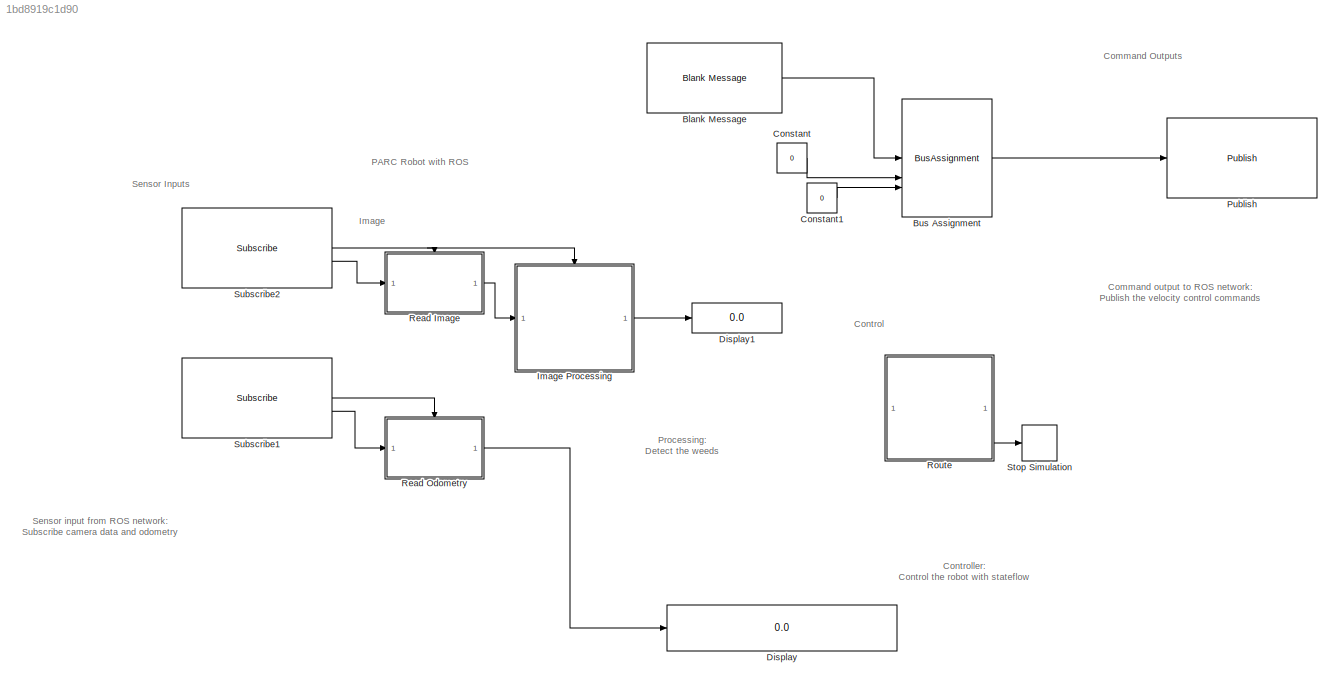
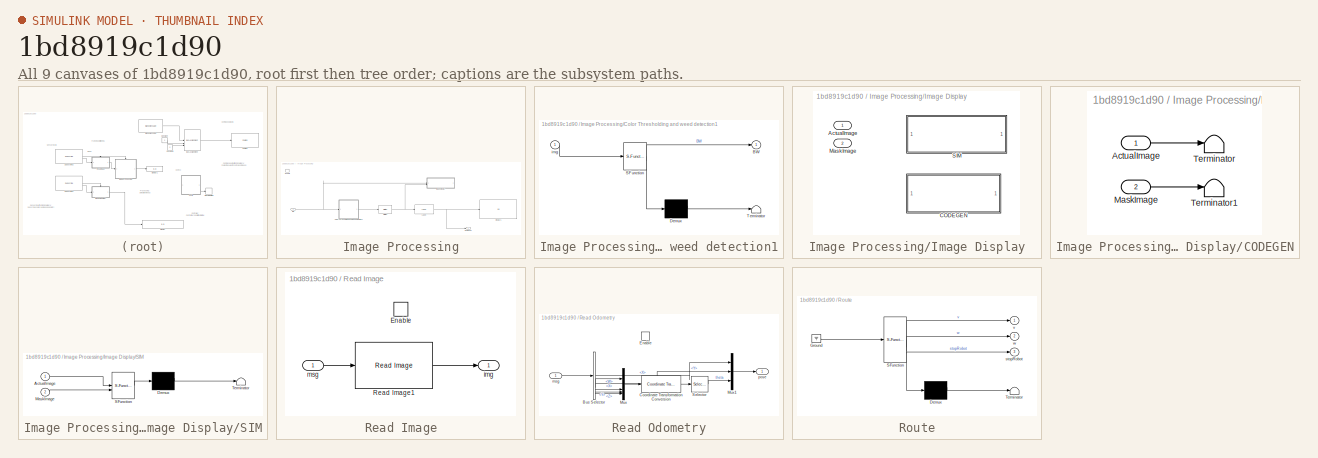
[diagram: thumbnail index - all 9 canvases of the model, root first then tree order]
MODEL slx_1bd8919c1d90
KIND model
CONFIG AbsTol = auto
CONFIG EnableMultiTasking = off
CONFIG FixedStep = auto
CONFIG MaxStep = auto
CONFIG MinStep = auto
CONFIG RelTol = 1e-3
CONFIG SampleTimeConstraint = Unconstrained
CONFIG SolverName = FixedStepAuto
CONFIG StartTime = 0.0
CONFIG StopFcn = figHandles = findobj('Type', 'figure');\nfor i = 1: length(figHandles)\n    if contains(figHandles(i).Name, 'Sign Following Robot', 'IgnoreCase', true)\n        close(figHandles(i));\n    end\nend\n\nclear figHandles;
CONFIG StopTime = inf
WORKSPACE source: mxarray member
WORKSPACE SL_ROS_VariableLengthArrays_MaxSizes: object (value not decoded)
BLOCK [Reference] Blank Message  REF=robotlib/Blank Message
  SourceBlock = robotlib/Blank Message
  SourceType = ROS Blank Message
BLOCK [BusAssignment] Bus Assignment
  AssignedSignals = Linear.X,Angular.Z
BLOCK [Constant] Constant
  Value = 0
BLOCK [Constant] Constant1
  Value = 0
BLOCK [Display] Display
  Decimation = 1
BLOCK [Display] Display1
  Decimation = 1
BLOCK [SubSystem] Image Processing
  TreatAsAtomicUnit = on
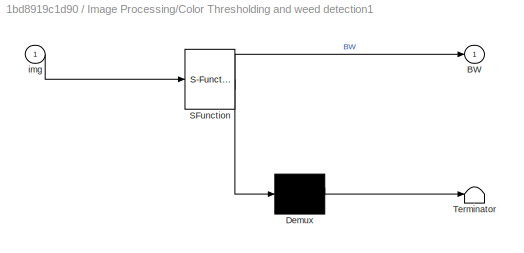
BLOCK [SubSystem] Image Processing/Color Thresholding and weed detection1
  ErrorFcn = Stateflow.Translate.translate
  PermitHierarchicalResolution = ExplicitOnly
  SFBlockType = MATLAB Function
  TreatAsAtomicUnit = on
  VariantControl = Basic
BLOCK [Demux] Image Processing/Color Thresholding and weed detection1/ Demux 
  Outputs = 1
BLOCK [S-Function] Image Processing/Color Thresholding and weed detection1/ SFunction 
  EnableBusSupport = on
  FunctionName = sf_sfun
  PortCounts = [1 2]
  SFcnIsStateOwnerBlock = off
  SFunctionDeploymentMode = off
  Tag = Stateflow S-Function 2
BLOCK [Terminator] Image Processing/Color Thresholding and weed detection1/ Terminator 
BLOCK [Outport] Image Processing/Color Thresholding and weed detection1/BW
BLOCK [Inport] Image Processing/Color Thresholding and weed detection1/img
BLOCK [Reference] Image Processing/Dilation  REF=visionmorphops/Dilation
  SourceBlock = visionmorphops/Dilation
  SourceType = Dilation
BLOCK [Display] Image Processing/Display1
  Decimation = 1
BLOCK [EnablePort] Image Processing/Enable
BLOCK [SubSystem] Image Processing/Image Display
  Variant = on
  VariantControl = Variant1
  VariantControlMode = sim codegen switching
BLOCK [Inport] Image Processing/Image Display/ActualImage
BLOCK [SubSystem] Image Processing/Image Display/CODEGEN
  VariantControl = (codegen)
BLOCK [Inport] Image Processing/Image Display/CODEGEN/ActualImage
BLOCK [Inport] Image Processing/Image Display/CODEGEN/MaskImage
  Port = 2
BLOCK [Terminator] Image Processing/Image Display/CODEGEN/Terminator
BLOCK [Terminator] Image Processing/Image Display/CODEGEN/Terminator1
BLOCK [Inport] Image Processing/Image Display/MaskImage
  Port = 2
BLOCK [SubSystem] Image Processing/Image Display/SIM
  ErrorFcn = Stateflow.Translate.translate
  PermitHierarchicalResolution = ExplicitOnly
  SFBlockType = MATLAB Function
  TreatAsAtomicUnit = on
  VariantControl = (sim)
BLOCK [Demux] Image Processing/Image Display/SIM/ Demux 
  Outputs = 1
BLOCK [S-Function] Image Processing/Image Display/SIM/ SFunction 
  EnableBusSupport = on
  FunctionName = sf_sfun
  PortCounts = [2 1]
  SFcnIsStateOwnerBlock = off
  SFunctionDeploymentMode = off
  Tag = Stateflow S-Function 1
BLOCK [Terminator] Image Processing/Image Display/SIM/ Terminator 
BLOCK [Inport] Image Processing/Image Display/SIM/ActualImage
BLOCK [Inport] Image Processing/Image Display/SIM/MaskImage
  Port = 2
BLOCK [Reference] Image Processing/Label  REF=visionmorphops/Label
  SourceBlock = visionmorphops/Label
  SourceType = Label
BLOCK [Outport] Image Processing/NbWeeds
BLOCK [Inport] Image Processing/img
BLOCK [Reference] Publish  REF=robotlib/Publish
  SourceBlock = robotlib/Publish
  SourceType = ROS Publish
BLOCK [SubSystem] Read Image
  TreatAsAtomicUnit = on
BLOCK [EnablePort] Read Image/Enable
BLOCK [Reference] Read Image/Read Image1  REF=robotlib/Read Image
  SourceBlock = robotlib/Read Image
  SourceType = ros.slros.internal.block.ReadImage
BLOCK [Outport] Read Image/img
BLOCK [Inport] Read Image/msg
BLOCK [SubSystem] Read Odometry
  TreatAsAtomicUnit = on
BLOCK [BusSelector] Read Odometry/Bus Selector
  OutputSignals = Pose.Pose.Position.X,Pose.Pose.Position.Y,Pose.Pose.Orientation.W,Pose.Pose.Orientation.X,Pose.Pose.Orientation.Y,Pose.Pose.Orientation.Z
BLOCK [Reference] Read Odometry/Coordinate Transformation Conversion  REF=robotcorelib/Coordinate Transformation Conversion
  SourceBlock = robotcorelib/Coordinate Transformation Conversion
  SourceType = robotics.slcore.internal.block.CoordinateTransformationConversion
BLOCK [EnablePort] Read Odometry/Enable
BLOCK [Mux] Read Odometry/Mux
  DisplayOption = bar
BLOCK [Mux] Read Odometry/Mux1
  DisplayOption = bar
  Inputs = 3
BLOCK [Selector] Read Odometry/Selector
  IndexOptions = Index vector (dialog)
  Indices = 1
  InputPortWidth = 3
  OutputSizes = 1
BLOCK [Inport] Read Odometry/msg
BLOCK [Outport] Read Odometry/pose
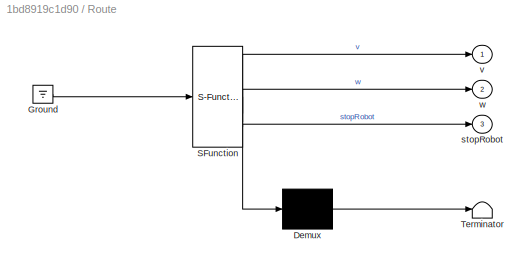
BLOCK [SubSystem] Route
  Commented = on
  ErrorFcn = Stateflow.Translate.translate
  PermitHierarchicalResolution = ExplicitOnly
  SFBlockType = Chart
  TreatAsAtomicUnit = on
BLOCK [Demux] Route/ Demux 
  Outputs = 1
BLOCK [Ground] Route/ Ground 
BLOCK [S-Function] Route/ SFunction 
  EnableBusSupport = on
  FunctionName = sf_sfun
  PortCounts = [1 4]
  SFcnIsStateOwnerBlock = off
  SFunctionDeploymentMode = off
  Tag = Stateflow S-Function 3
BLOCK [Terminator] Route/ Terminator 
BLOCK [Outport] Route/stopRobot
  Port = 3
BLOCK [Outport] Route/v
BLOCK [Outport] Route/w
  Port = 2
BLOCK [Stop] Stop Simulation
  Commented = on
BLOCK [Reference] Subscribe1  REF=robotlib/Subscribe
  SourceBlock = robotlib/Subscribe
  SourceType = ROS Subscribe
BLOCK [Reference] Subscribe2  REF=robotlib/Subscribe
  SourceBlock = robotlib/Subscribe
  SourceType = ROS Subscribe
ANNOTATION (root): Command output to ROS network: Publish the velocity control commands
ANNOTATION (root): Controller: Control the robot with stateflow
ANNOTATION (root): Processing: Detect the weeds
ANNOTATION (root): Sensor input from ROS network: Subscribe camera data and odometry
ANNOTATION (root): PARC Robot with ROS
ANNOTATION (root): Command Outputs
ANNOTATION (root): Control
ANNOTATION (root): Image
ANNOTATION (root): Sensor Inputs
LINE Blank Message:1 -> Bus Assignment:1
LINE Bus Assignment:1 -> Publish:1
LINE Constant1:1 -> Bus Assignment:3
LINE Constant:1 -> Bus Assignment:2
LINE Image Processing/Color Thresholding and weed detection1:1 -> Image Processing/Dilation:1
NET Image Processing/Dilation:1 -> Image Processing/Image Display:2, Image Processing/Label:1
LINE Image Processing/Image Display/CODEGEN/ActualImage:1 -> Image Processing/Image Display/CODEGEN/Terminator:1
LINE Image Processing/Image Display/CODEGEN/MaskImage:1 -> Image Processing/Image Display/CODEGEN/Terminator1:1
NET Image Processing/Label:1 -> Image Processing/Display1:1, Image Processing/NbWeeds:1
NET Image Processing/img:1 -> Image Processing/Color Thresholding and weed detection1:1, Image Processing/Image Display:1
LINE Image Processing:1 -> Display1:1
LINE Read Image/Read Image1:1 -> Read Image/img:1
LINE Read Image/msg:1 -> Read Image/Read Image1:1
LINE Read Image:1 -> Image Processing:1
LINE Read Odometry/Bus Selector:1 -> Read Odometry/Mux1:1
LINE Read Odometry/Bus Selector:2 -> Read Odometry/Mux1:2
LINE Read Odometry/Bus Selector:3 -> Read Odometry/Mux:1
LINE Read Odometry/Bus Selector:4 -> Read Odometry/Mux:2
LINE Read Odometry/Bus Selector:5 -> Read Odometry/Mux:3
LINE Read Odometry/Bus Selector:6 -> Read Odometry/Mux:4
LINE Read Odometry/Coordinate Transformation Conversion:1 -> Read Odometry/Selector:1
LINE Read Odometry/Mux1:1 -> Read Odometry/pose:1
LINE Read Odometry/Mux:1 -> Read Odometry/Coordinate Transformation Conversion:1
LINE Read Odometry/Selector:1 -> Read Odometry/Mux1:3
LINE Read Odometry/msg:1 -> Read Odometry/Bus Selector:1
LINE Read Odometry:1 -> Display:1
LINE Route:3 -> Stop Simulation:1
LINE Subscribe1:1 -> Read Odometry:enable
LINE Subscribe1:2 -> Read Odometry:1
NET Subscribe2:1 -> Image Processing:enable, Read Image:enable
LINE Subscribe2:2 -> Read Image:1
note: NET lines group one-source signal fan-out (src -> all destinations, sorted); 1:1 wires keep LINE
CHART Image Processing/Image Display/SIM states=1 transitions=1
  STATE_LABEL 'eML_blk_kernel()'
  STATE_LABEL 'SCRIPT:\nfunction visualizeImages(ActualImage, MaskImage)\n%#codegen\ncoder.extrinsic(\'imshow\');\ncoder.extrinsic(\'axes\');\ncoder.extrinsic(\'figure\');\ncoder.extrinsic(\'subplot\');\ncoder.extrinsic(\'isempty\');\npersistent figure1;\n\nif isempty(figure1)\n    figure1 = figure("Name", "Sign Following Robot");\nend\nif ~isempty(ActualImage)\n    subplot(1,2,1); imshow(ActualImage,\'InitialMagnification\', \'fit\');\nend...<+97ch>'
CHART Image Processing/Color Thresholding and weed detection1 states=1 transitions=1
  STATE_LABEL 'eML_blk_kernel()'
  STATE_LABEL 'SCRIPT:\nfunction BW= processImageBasic(img)\n\n% Convert RGB image to chosen color space\nI = rgb2lab(img);\n\n% Define thresholds for channel 1 based on histogram settings\nchannel1Min = 27.074;\nchannel1Max = 87.009;\n\n% Define thresholds for channel 2 based on histogram settings\nchannel2Min = -21.242;\nchannel2Max = -7.642;\n\n% Define thresholds for channel 3 based on histogram settings\nchannel3Min = 40....<+299ch>'
CHART Route states=5 transitions=5
  STATE_LABEL 'Step1\nen:\nv = 0;\nw = 0;'
  STATE_LABEL 'Stop\nen:\nv = 0;\nw = 0;\nstopRobot = true;'
  STATE_LABEL 'Step2\nen: v = 0;\n w = 0.5;'
  STATE_LABEL 'Step3\nen: v = 0.3;\n w = 0;'
  STATE_LABEL 'Step4\nen: v = 0.3;\n w = 0;'
CHART  states=0 transitions=0
CHART  states=0 transitions=0
CHART  states=0 transitions=0
